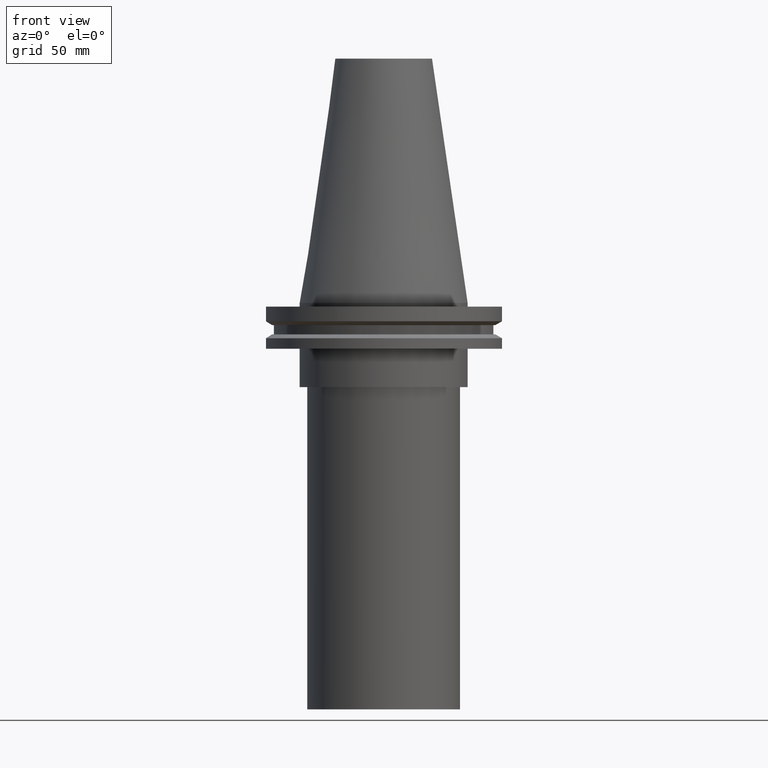
[diagram: clean part render]
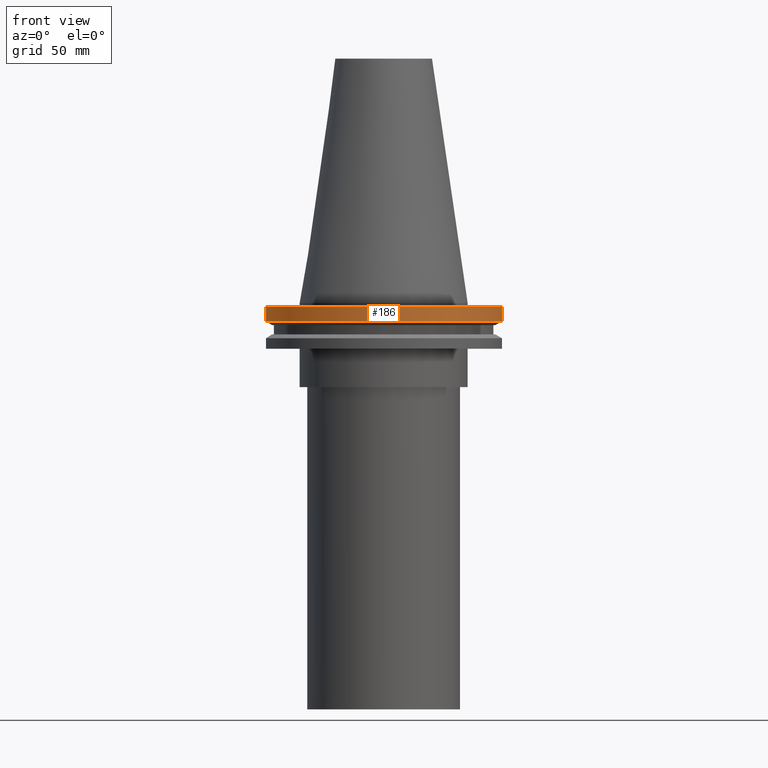
[diagram: same view with one face highlighted and labeled with its STEP entity id]
A machine part, front view. The second image highlights one B-rep face of the part: STEP entity #186.
In plain terms, the highlighted cylindrical surface (bore or boss wall) has radius 49.215 mm, axis along (-0, -0, 1).
Its self-contained STEP definition (entity closure, byte-faithful):
#1 = AXIS2_PLACEMENT_3D ( 'NONE', #275, #333, #384 ) ;
#5 = DIRECTION ( 'NONE',  ( -0.000000000000000000, -0.000000000000000000, 1.000000000000000000 ) ) ;
#7 = CARTESIAN_POINT ( 'NONE',  ( 49.21500000000000341, 0.000000000000000000, -7.602389855251287187 ) ) ;
#22 = EDGE_LOOP ( 'NONE', ( #152 ) ) ;
#31 = CARTESIAN_POINT ( 'NONE',  ( 0.000000000000000000, 0.000000000000000000, 101.5999999999999943 ) ) ;
#32 = EDGE_CURVE ( 'NONE', #128, #128, #366, .T. ) ;
#66 = ORIENTED_EDGE ( 'NONE', *, *, #32, .F. ) ;
#67 = FACE_OUTER_BOUND ( 'NONE', #22, .T. ) ;
#77 = AXIS2_PLACEMENT_3D ( 'NONE', #270, #242, #106 ) ;
#106 = DIRECTION ( 'NONE',  ( 1.000000000000000000, 0.000000000000000000, 0.000000000000000000 ) ) ;
#113 = EDGE_CURVE ( 'NONE', #286, #286, #228, .T. ) ;
#120 = CYLINDRICAL_SURFACE ( 'NONE', #188, 49.21499999999999631 ) ;
#128 = VERTEX_POINT ( 'NONE', #259 ) ;
#151 = DIRECTION ( 'NONE',  ( 1.000000000000000000, 0.000000000000000000, 0.000000000000000000 ) ) ;
#152 = ORIENTED_EDGE ( 'NONE', *, *, #113, .T. ) ;
#186 = ADVANCED_FACE ( 'NONE', ( #339, #67 ), #120, .T. ) ;
#188 = AXIS2_PLACEMENT_3D ( 'NONE', #31, #5, #151 ) ;
#228 = CIRCLE ( 'NONE', #77, 49.21500000000000341 ) ;
#242 = DIRECTION ( 'NONE',  ( -0.000000000000000000, -0.000000000000000000, 1.000000000000000000 ) ) ;
#259 = CARTESIAN_POINT ( 'NONE',  ( 49.21499999999999631, 0.000000000000000000, -1.499999999999987566 ) ) ;
#270 = CARTESIAN_POINT ( 'NONE',  ( 0.000000000000000000, 0.000000000000000000, -7.602389855251287187 ) ) ;
#275 = CARTESIAN_POINT ( 'NONE',  ( 0.000000000000000000, 0.000000000000000000, -1.499999999999987566 ) ) ;
#286 = VERTEX_POINT ( 'NONE', #7 ) ;
#333 = DIRECTION ( 'NONE',  ( -0.000000000000000000, -0.000000000000000000, 1.000000000000000000 ) ) ;
#339 = FACE_OUTER_BOUND ( 'NONE', #340, .T. ) ;
#340 = EDGE_LOOP ( 'NONE', ( #66 ) ) ;
#366 = CIRCLE ( 'NONE', #1, 49.21499999999999631 ) ;
#384 = DIRECTION ( 'NONE',  ( 1.000000000000000000, 0.000000000000000000, 0.000000000000000000 ) ) ;